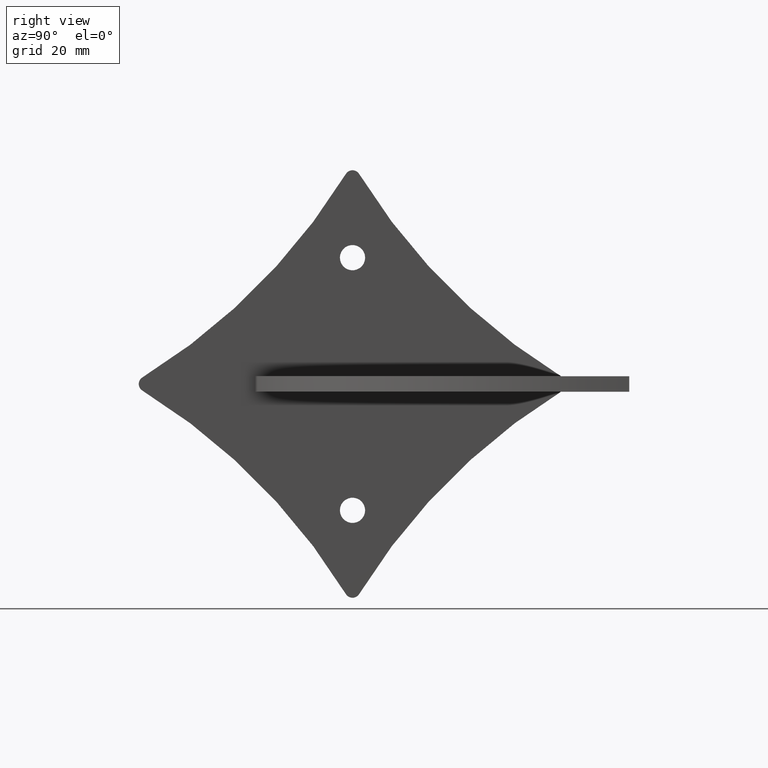
[diagram: clean part render]
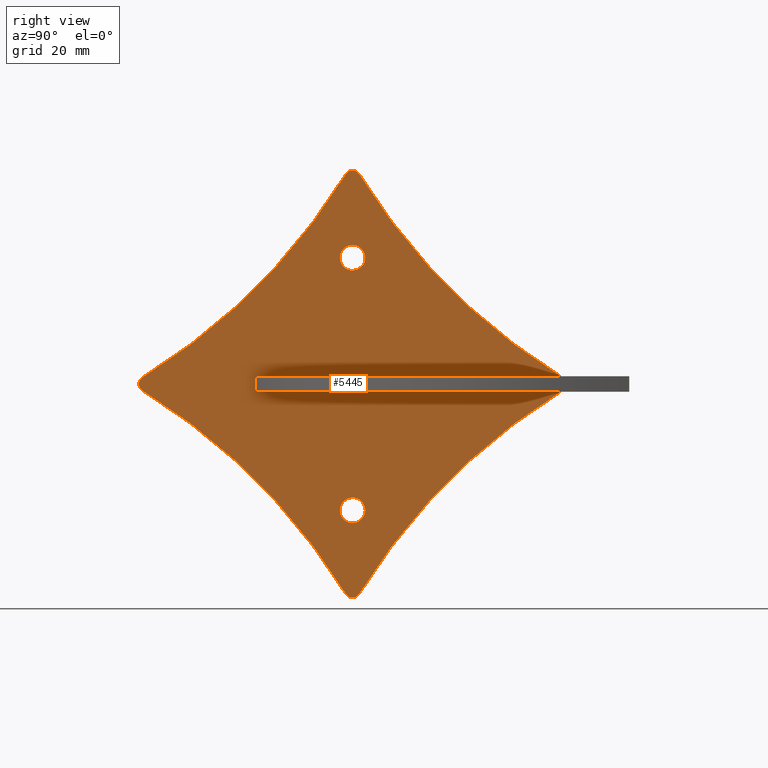
[diagram: same view with one face highlighted and labeled with its STEP entity id]
A machine part, right view. The second image highlights one B-rep face of the part: STEP entity #5445.
In plain terms, the highlighted planar face has unit normal (-1, 0, 0).
Its self-contained STEP definition (entity closure, byte-faithful):
#47 = VERTEX_POINT ( 'NONE', #2598 ) ;
#75 = DIRECTION ( 'NONE',  ( -7.993605777301128353E-14, -1.000000000000000000, 0.000000000000000000 ) ) ;
#95 = VERTEX_POINT ( 'NONE', #7349 ) ;
#135 = DIRECTION ( 'NONE',  ( -7.993605777301127091E-14, -1.000000000000000000, 0.000000000000000000 ) ) ;
#217 = CIRCLE ( 'NONE', #8339, 159.9999999999999716 ) ;
#303 = DIRECTION ( 'NONE',  ( 1.000000000000000000, -7.993605777301128353E-14, -0.000000000000000000 ) ) ;
#338 = VERTEX_POINT ( 'NONE', #2508 ) ;
#409 = EDGE_CURVE ( 'NONE', #11357, #4751, #9129, .T. ) ;
#412 = ORIENTED_EDGE ( 'NONE', *, *, #4466, .F. ) ;
#558 = CARTESIAN_POINT ( 'NONE',  ( -1.109335647967048031E-27, -1.387778780781445676E-14, -32.49999999999999289 ) ) ;
#598 = DIRECTION ( 'NONE',  ( -7.993605777301129615E-14, -1.000000000000000000, 0.000000000000000000 ) ) ;
#800 = EDGE_CURVE ( 'NONE', #8891, #11037, #11198, .T. ) ;
#923 = EDGE_CURVE ( 'NONE', #7439, #4751, #10198, .T. ) ;
#932 = DIRECTION ( 'NONE',  ( 7.993605777301129615E-14, 1.000000000000000000, 0.000000000000000000 ) ) ;
#983 = PLANE ( 'NONE',  #7384 ) ;
#1023 = DIRECTION ( 'NONE',  ( -7.993605777301128353E-14, -1.000000000000000000, 0.000000000000000000 ) ) ;
#1167 = EDGE_CURVE ( 'NONE', #10757, #95, #217, .T. ) ;
#1172 = EDGE_LOOP ( 'NONE', ( #6744, #3605, #10327, #5289, #4121, #1728, #4161, #4330, #2497 ) ) ;
#1217 = ORIENTED_EDGE ( 'NONE', *, *, #6217, .T. ) ;
#1262 = AXIS2_PLACEMENT_3D ( 'NONE', #5282, #9679, #10609 ) ;
#1339 = DIRECTION ( 'NONE',  ( -1.000000000000000000, 7.993605777301128353E-14, 0.000000000000000000 ) ) ;
#1571 = DIRECTION ( 'NONE',  ( -1.000000000000000000, 7.993605777301128353E-14, 0.000000000000000000 ) ) ;
#1603 = ORIENTED_EDGE ( 'NONE', *, *, #8270, .T. ) ;
#1699 = ORIENTED_EDGE ( 'NONE', *, *, #4448, .T. ) ;
#1728 = ORIENTED_EDGE ( 'NONE', *, *, #9059, .F. ) ;
#1753 = DIRECTION ( 'NONE',  ( -0.000000000000000000, -0.000000000000000000, -1.000000000000000000 ) ) ;
#1815 = AXIS2_PLACEMENT_3D ( 'NONE', #2023, #1950, #135 ) ;
#1824 = DIRECTION ( 'NONE',  ( -7.993605777301127091E-14, -1.000000000000000000, 0.000000000000000000 ) ) ;
#1950 = DIRECTION ( 'NONE',  ( 1.000000000000000000, -7.993605777301128353E-14, -0.000000000000000000 ) ) ;
#2023 = CARTESIAN_POINT ( 'NONE',  ( -1.102669412509716313E-11, -137.9439320914333678, 137.9439320914332825 ) ) ;
#2030 = AXIS2_PLACEMENT_3D ( 'NONE', #3368, #1571, #7079 ) ;
#2038 = CARTESIAN_POINT ( 'NONE',  ( -1.109335647967048031E-27, -1.387778780781445676E-14, -32.49999999999999289 ) ) ;
#2099 = AXIS2_PLACEMENT_3D ( 'NONE', #6233, #11781, #1824 ) ;
#2103 = CIRCLE ( 'NONE', #9213, 3.250000000000000444 ) ;
#2188 = DIRECTION ( 'NONE',  ( -1.000000000000000000, 7.993605777301128353E-14, 0.000000000000000000 ) ) ;
#2497 = ORIENTED_EDGE ( 'NONE', *, *, #6430, .F. ) ;
#2508 = CARTESIAN_POINT ( 'NONE',  ( -2.597921877622878421E-13, -3.250000000000014211, -32.49999999999999289 ) ) ;
#2598 = CARTESIAN_POINT ( 'NONE',  ( 4.396483177515616669E-12, 54.99999999999995026, 6.228573115277476685E-15 ) ) ;
#2671 = CARTESIAN_POINT ( 'NONE',  ( 1.102669412509715990E-11, 137.9439320914333109, -137.9439320914332825 ) ) ;
#2840 = DIRECTION ( 'NONE',  ( -1.000000000000000000, 7.993605777301128353E-14, 0.000000000000000000 ) ) ;
#2871 = AXIS2_PLACEMENT_3D ( 'NONE', #2038, #9365, #10369 ) ;
#2928 = EDGE_LOOP ( 'NONE', ( #10258, #1699 ) ) ;
#3312 = VERTEX_POINT ( 'NONE', #7857 ) ;
#3368 = CARTESIAN_POINT ( 'NONE',  ( 4.236611061969595743E-12, 52.99999999999996447, 6.228573115277476685E-15 ) ) ;
#3418 = CARTESIAN_POINT ( 'NONE',  ( 1.361320262357661371E-13, 1.703011507301621652, 54.04869051964736570 ) ) ;
#3474 = AXIS2_PLACEMENT_3D ( 'NONE', #6830, #1339, #6868 ) ;
#3605 = ORIENTED_EDGE ( 'NONE', *, *, #9146, .F. ) ;
#3616 = CARTESIAN_POINT ( 'NONE',  ( 1.361320262357657079E-13, 1.703011507301624983, -54.04869051964732307 ) ) ;
#3646 = DIRECTION ( 'NONE',  ( 7.993605777301128353E-14, 1.000000000000000000, 0.000000000000000000 ) ) ;
#3651 = VERTEX_POINT ( 'NONE', #3616 ) ;
#3724 = DIRECTION ( 'NONE',  ( -1.000000000000000000, 7.993605777301128353E-14, 0.000000000000000000 ) ) ;
#3885 = VERTEX_POINT ( 'NONE', #9728 ) ;
#3917 = CARTESIAN_POINT ( 'NONE',  ( -1.998139615876600116E-12, -24.99999999999961986, 2.000000000000000000 ) ) ;
#3930 = EDGE_LOOP ( 'NONE', ( #10048, #10495, #5642, #412 ) ) ;
#3957 = DIRECTION ( 'NONE',  ( 7.993605777301129615E-14, 1.000000000000000000, 0.000000000000000000 ) ) ;
#4072 = CIRCLE ( 'NONE', #4248, 160.0000000000000000 ) ;
#4121 = ORIENTED_EDGE ( 'NONE', *, *, #7458, .F. ) ;
#4161 = ORIENTED_EDGE ( 'NONE', *, *, #1167, .F. ) ;
#4177 = DIRECTION ( 'NONE',  ( -7.993605777301128353E-14, -1.000000000000000000, 0.000000000000000000 ) ) ;
#4220 = DIRECTION ( 'NONE',  ( -1.000000000000000000, 7.993605777301128353E-14, 0.000000000000000000 ) ) ;
#4221 = DIRECTION ( 'NONE',  ( -1.000000000000000000, 7.993605777301128353E-14, 0.000000000000000000 ) ) ;
#4248 = AXIS2_PLACEMENT_3D ( 'NONE', #2671, #6248, #932 ) ;
#4290 = EDGE_CURVE ( 'NONE', #9766, #11357, #11865, .T. ) ;
#4330 = ORIENTED_EDGE ( 'NONE', *, *, #4789, .F. ) ;
#4377 = FACE_BOUND ( 'NONE', #8864, .T. ) ;
#4448 = EDGE_CURVE ( 'NONE', #338, #6891, #2103, .T. ) ;
#4466 = EDGE_CURVE ( 'NONE', #9766, #7439, #10250, .T. ) ;
#4635 = CARTESIAN_POINT ( 'NONE',  ( -1.361320262357675507E-13, -1.703011507301648075, 54.04869051964733728 ) ) ;
#4665 = CARTESIAN_POINT ( 'NONE',  ( 1.998587412948803633E-12, 24.99999999999992539, 2.000000000000000000 ) ) ;
#4751 = VERTEX_POINT ( 'NONE', #5035 ) ;
#4789 = EDGE_CURVE ( 'NONE', #8761, #10757, #10523, .T. ) ;
#4809 = CIRCLE ( 'NONE', #2099, 160.0000000000000284 ) ;
#4988 = AXIS2_PLACEMENT_3D ( 'NONE', #6393, #9181, #75 ) ;
#5035 = CARTESIAN_POINT ( 'NONE',  ( 1.998401444325281773E-12, 24.99999999999996803, -2.000000000000000000 ) ) ;
#5059 = CIRCLE ( 'NONE', #1815, 160.0000000000000000 ) ;
#5256 = VECTOR ( 'NONE', #1753, 1000.000000000000000 ) ;
#5282 = CARTESIAN_POINT ( 'NONE',  ( 4.236611061969595743E-12, 52.99999999999996447, 6.228573115277476685E-15 ) ) ;
#5289 = ORIENTED_EDGE ( 'NONE', *, *, #10804, .F. ) ;
#5445 = ADVANCED_FACE ( 'NONE', ( #6786, #9078, #4377, #8794 ), #983, .F. ) ;
#5642 = ORIENTED_EDGE ( 'NONE', *, *, #923, .F. ) ;
#5672 = CIRCLE ( 'NONE', #4988, 3.250000000000000888 ) ;
#5691 = AXIS2_PLACEMENT_3D ( 'NONE', #8808, #4221, #4177 ) ;
#5782 = CIRCLE ( 'NONE', #5691, 3.250000000000000888 ) ;
#5851 = DIRECTION ( 'NONE',  ( -7.993605777301123305E-14, -1.000000000000000000, 0.000000000000000000 ) ) ;
#6217 = EDGE_CURVE ( 'NONE', #3312, #3885, #5782, .T. ) ;
#6233 = CARTESIAN_POINT ( 'NONE',  ( -1.102669412509716636E-11, -137.9439320914333962, -137.9439320914332257 ) ) ;
#6248 = DIRECTION ( 'NONE',  ( 1.000000000000000000, -7.993605777301128353E-14, -0.000000000000000000 ) ) ;
#6393 = CARTESIAN_POINT ( 'NONE',  ( -4.730283055939027923E-28, -5.917583613356660292E-15, 32.50000000000000711 ) ) ;
#6430 = EDGE_CURVE ( 'NONE', #11037, #8761, #5059, .T. ) ;
#6599 = AXIS2_PLACEMENT_3D ( 'NONE', #7279, #3724, #3646 ) ;
#6634 = CARTESIAN_POINT ( 'NONE',  ( -4.320439247934125394E-12, -54.04869051964719517, 1.703011507301732674 ) ) ;
#6636 = CARTESIAN_POINT ( 'NONE',  ( -4.320439247934135088E-12, -54.04869051964730886, -1.703011507301593896 ) ) ;
#6744 = ORIENTED_EDGE ( 'NONE', *, *, #800, .F. ) ;
#6786 = FACE_BOUND ( 'NONE', #3930, .T. ) ;
#6830 = CARTESIAN_POINT ( 'NONE',  ( -1.094639335959678052E-28, -1.369393695981414631E-15, 52.99999999999998579 ) ) ;
#6868 = DIRECTION ( 'NONE',  ( -7.993605777301128353E-14, -1.000000000000000000, 0.000000000000000000 ) ) ;
#6891 = VERTEX_POINT ( 'NONE', #8740 ) ;
#7079 = DIRECTION ( 'NONE',  ( 7.993605777301123305E-14, 1.000000000000000000, 0.000000000000000000 ) ) ;
#7279 = CARTESIAN_POINT ( 'NONE',  ( -1.693206494350487913E-27, -2.118201149171711369E-14, -53.00000000000001421 ) ) ;
#7349 = CARTESIAN_POINT ( 'NONE',  ( 4.320439247934132664E-12, 54.04869051964728044, 1.703011507301644301 ) ) ;
#7384 = AXIS2_PLACEMENT_3D ( 'NONE', #9133, #2840, #1023 ) ;
#7439 = VERTEX_POINT ( 'NONE', #8929 ) ;
#7458 = EDGE_CURVE ( 'NONE', #47, #7626, #10539, .T. ) ;
#7498 = CARTESIAN_POINT ( 'NONE',  ( 1.110223024625135740E-12, -3.944304526105082560E-26, 2.000000000000000000 ) ) ;
#7544 = CARTESIAN_POINT ( 'NONE',  ( -4.236611061969596550E-12, -52.99999999999997868, 1.920982918623941659E-14 ) ) ;
#7626 = VERTEX_POINT ( 'NONE', #11249 ) ;
#7857 = CARTESIAN_POINT ( 'NONE',  ( 2.597921877622862266E-13, 3.249999999999994671, 32.50000000000000711 ) ) ;
#7950 = CARTESIAN_POINT ( 'NONE',  ( 2.220446049250313081E-13, -24.99999999999879918, 2.000000000000000000 ) ) ;
#8219 = CIRCLE ( 'NONE', #2871, 3.250000000000000444 ) ;
#8248 = EDGE_CURVE ( 'NONE', #3651, #10857, #10682, .T. ) ;
#8270 = EDGE_CURVE ( 'NONE', #3885, #3312, #5672, .T. ) ;
#8339 = AXIS2_PLACEMENT_3D ( 'NONE', #11197, #303, #3957 ) ;
#8740 = CARTESIAN_POINT ( 'NONE',  ( 2.597921877622855702E-13, 3.249999999999986233, -32.49999999999999289 ) ) ;
#8761 = VERTEX_POINT ( 'NONE', #4635 ) ;
#8794 = FACE_BOUND ( 'NONE', #2928, .T. ) ;
#8808 = CARTESIAN_POINT ( 'NONE',  ( -4.730283055939027923E-28, -5.917583613356660292E-15, 32.50000000000000711 ) ) ;
#8864 = EDGE_LOOP ( 'NONE', ( #1217, #1603 ) ) ;
#8891 = VERTEX_POINT ( 'NONE', #6636 ) ;
#8929 = CARTESIAN_POINT ( 'NONE',  ( -1.998401444325186453E-12, -24.99999999999879918, -2.000000000000000000 ) ) ;
#9059 = EDGE_CURVE ( 'NONE', #95, #47, #10094, .T. ) ;
#9078 = FACE_OUTER_BOUND ( 'NONE', #1172, .T. ) ;
#9129 = LINE ( 'NONE', #10894, #5256 ) ;
#9133 = CARTESIAN_POINT ( 'NONE',  ( -7.631652593533379434E-12, -95.47196604571666967, 68.97196604571664125 ) ) ;
#9146 = EDGE_CURVE ( 'NONE', #10857, #8891, #4809, .T. ) ;
#9181 = DIRECTION ( 'NONE',  ( -1.000000000000000000, 7.993605777301128353E-14, 0.000000000000000000 ) ) ;
#9213 = AXIS2_PLACEMENT_3D ( 'NONE', #558, #4220, #598 ) ;
#9365 = DIRECTION ( 'NONE',  ( -1.000000000000000000, 7.993605777301128353E-14, 0.000000000000000000 ) ) ;
#9378 = VECTOR ( 'NONE', #11183, 1000.000000000000000 ) ;
#9679 = DIRECTION ( 'NONE',  ( -1.000000000000000000, 7.993605777301128353E-14, 0.000000000000000000 ) ) ;
#9728 = CARTESIAN_POINT ( 'NONE',  ( -2.597921877622872363E-13, -3.250000000000006661, 32.50000000000000711 ) ) ;
#9766 = VERTEX_POINT ( 'NONE', #3917 ) ;
#9974 = CARTESIAN_POINT ( 'NONE',  ( -1.361320262357708576E-13, -1.703011507301677163, -54.04869051964735149 ) ) ;
#10048 = ORIENTED_EDGE ( 'NONE', *, *, #4290, .T. ) ;
#10094 = CIRCLE ( 'NONE', #2030, 1.999999999999988010 ) ;
#10198 = LINE ( 'NONE', #10372, #10611 ) ;
#10250 = LINE ( 'NONE', #7950, #10374 ) ;
#10258 = ORIENTED_EDGE ( 'NONE', *, *, #10511, .T. ) ;
#10327 = ORIENTED_EDGE ( 'NONE', *, *, #8248, .F. ) ;
#10369 = DIRECTION ( 'NONE',  ( -7.993605777301129615E-14, -1.000000000000000000, 0.000000000000000000 ) ) ;
#10372 = CARTESIAN_POINT ( 'NONE',  ( 1.110223024625135740E-12, -3.944304526105082560E-26, -2.000000000000000000 ) ) ;
#10374 = VECTOR ( 'NONE', #11662, 1000.000000000000000 ) ;
#10495 = ORIENTED_EDGE ( 'NONE', *, *, #409, .T. ) ;
#10511 = EDGE_CURVE ( 'NONE', #6891, #338, #8219, .T. ) ;
#10523 = CIRCLE ( 'NONE', #3474, 2.000000000000013767 ) ;
#10539 = CIRCLE ( 'NONE', #1262, 1.999999999999988010 ) ;
#10609 = DIRECTION ( 'NONE',  ( 7.993605777301123305E-14, 1.000000000000000000, 0.000000000000000000 ) ) ;
#10611 = VECTOR ( 'NONE', #11460, 1000.000000000000000 ) ;
#10631 = AXIS2_PLACEMENT_3D ( 'NONE', #7544, #2188, #5851 ) ;
#10682 = CIRCLE ( 'NONE', #6599, 1.999999999999992228 ) ;
#10757 = VERTEX_POINT ( 'NONE', #3418 ) ;
#10804 = EDGE_CURVE ( 'NONE', #7626, #3651, #4072, .T. ) ;
#10857 = VERTEX_POINT ( 'NONE', #9974 ) ;
#10894 = CARTESIAN_POINT ( 'NONE',  ( 1.998401444325281773E-12, 24.99999999999996803, 2.000000000000000000 ) ) ;
#11037 = VERTEX_POINT ( 'NONE', #6634 ) ;
#11183 = DIRECTION ( 'NONE',  ( 3.552713678800588651E-14, 1.000000000000000000, 0.000000000000000000 ) ) ;
#11197 = CARTESIAN_POINT ( 'NONE',  ( 1.102669412509716151E-11, 137.9439320914333393, 137.9439320914332825 ) ) ;
#11198 = CIRCLE ( 'NONE', #10631, 1.999999999999988010 ) ;
#11249 = CARTESIAN_POINT ( 'NONE',  ( 4.320439247934134280E-12, 54.04869051964729465, -1.703011507301621652 ) ) ;
#11357 = VERTEX_POINT ( 'NONE', #4665 ) ;
#11460 = DIRECTION ( 'NONE',  ( 3.552713678800588651E-14, 1.000000000000000000, 0.000000000000000000 ) ) ;
#11662 = DIRECTION ( 'NONE',  ( -0.000000000000000000, -0.000000000000000000, -1.000000000000000000 ) ) ;
#11781 = DIRECTION ( 'NONE',  ( 1.000000000000000000, -7.993605777301128353E-14, -0.000000000000000000 ) ) ;
#11865 = LINE ( 'NONE', #7498, #9378 ) ;